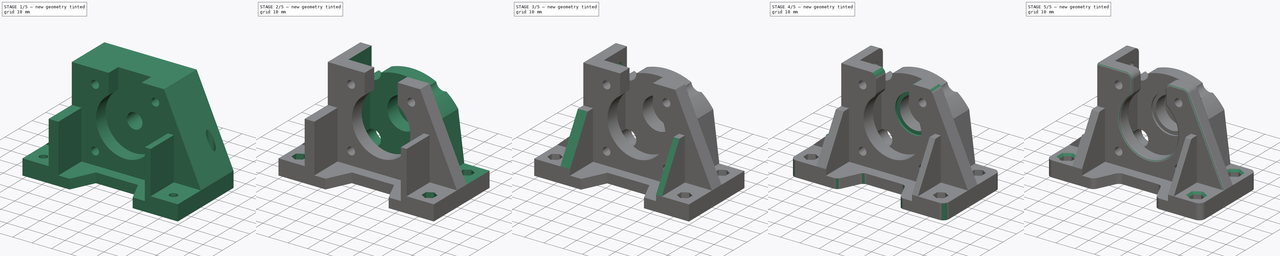
[diagram: build sequence overview — one tinted view per stage of 5, left to right]
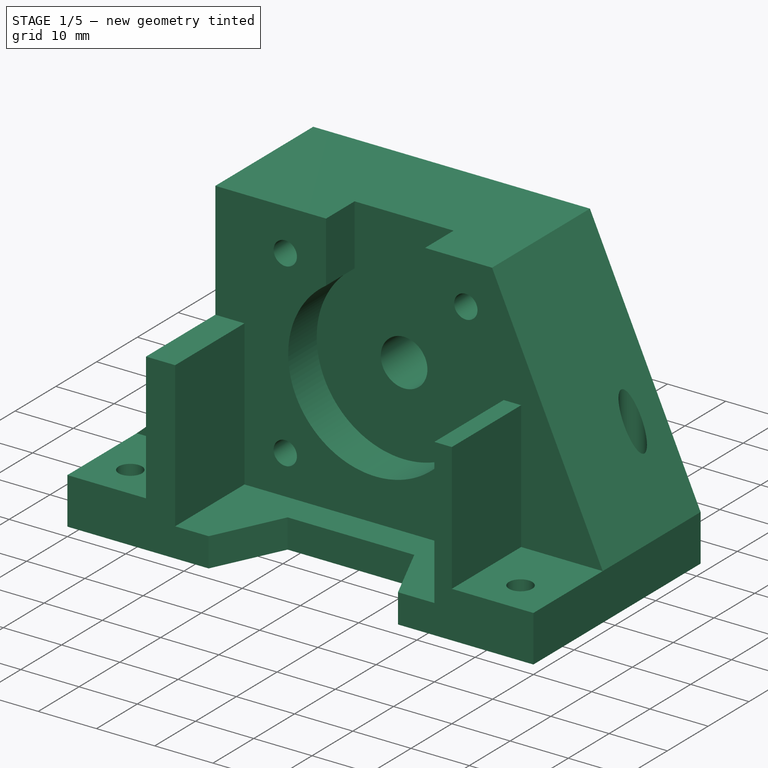
[diagram: stage 1 of 5 — iso view after this stage's code; geometry added in this stage tinted green]
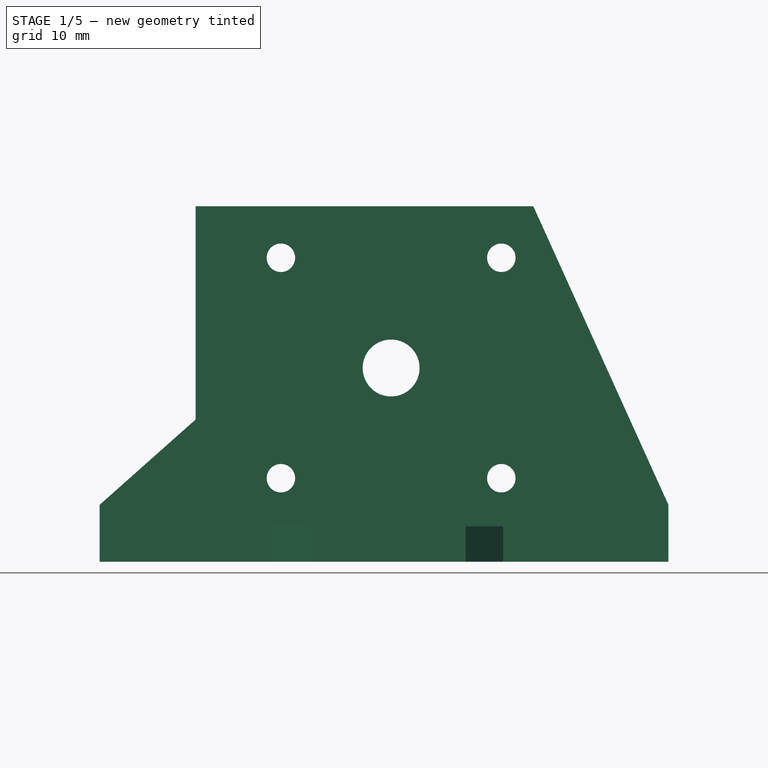
[diagram: stage 1 of 5 — front view after this stage's code; geometry added in this stage tinted green]
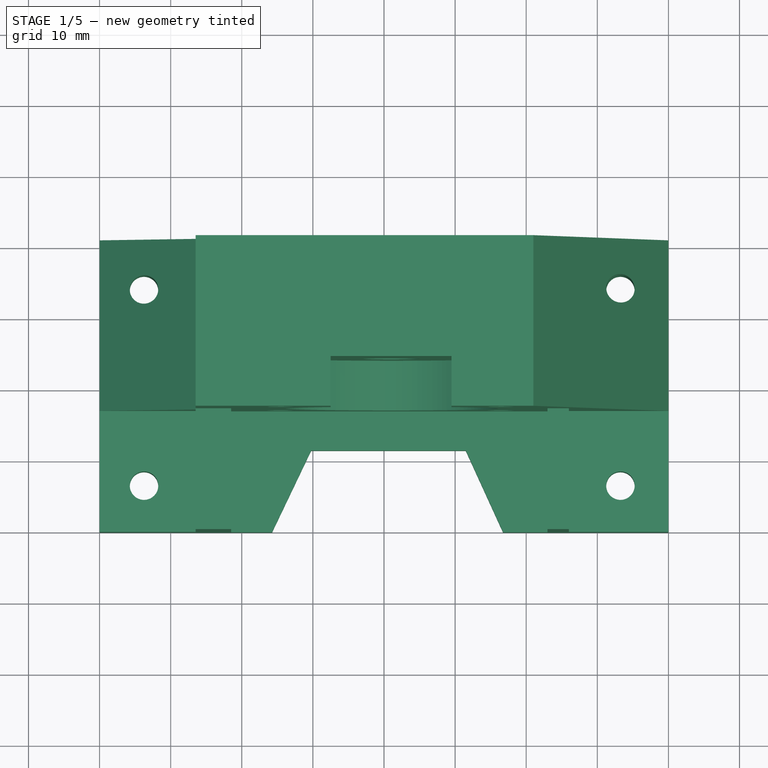
[diagram: stage 1 of 5 — top view after this stage's code; geometry added in this stage tinted green]
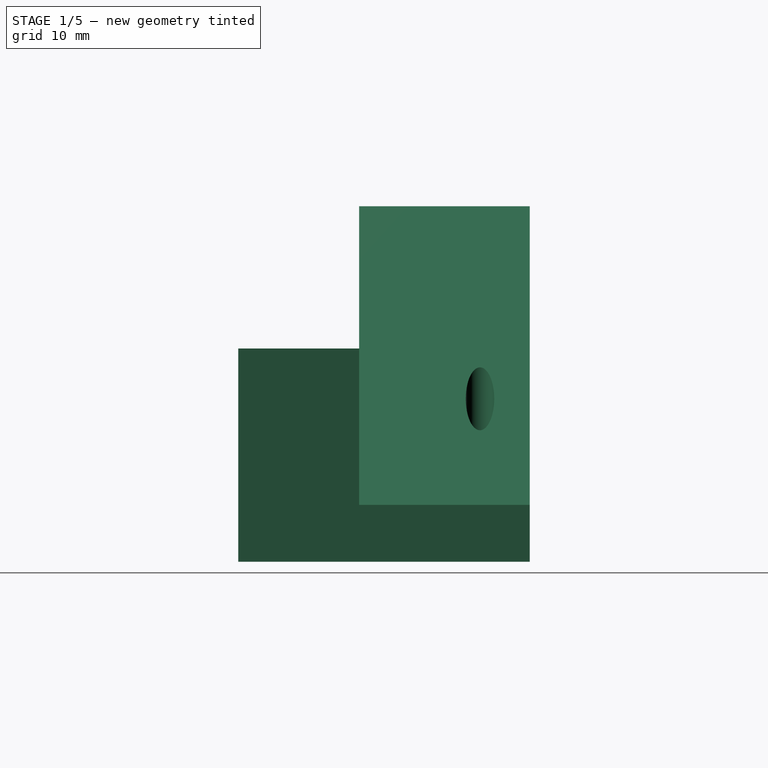
[diagram: stage 1 of 5 — right view after this stage's code; geometry added in this stage tinted green]
FCSTD DOCUMENT  (FreeCAD 0.18R4 (GitTag))
Label: Y_motor_mount_v0.2
License: CreativeCommons Attribution-ShareAlike
LicenseURL: http://creativecommons.org/licenses/by-sa/4.0/
objects: Sketcher::SketchObject×20, PartDesign::Pocket×18, PartDesign::Fillet×4, PartDesign::Pad×2, PartDesign::Chamfer×2, PartDesign::Body×1
note: 67 computed .brp shape members not serialized (recipe doc carries the construction recipe); baked Part::Feature solids carry a one-line shape summary decoded from their .brp

FEATURE [Sketcher::SketchObject] Sketch
  MapMode = 5
  Support = -> [XY_Plane]
  sketch-geometry (4):
    g0: LineSegment StartX=0 StartY=41 StartZ=0 EndX=80 EndY=41 EndZ=0
    g1: LineSegment StartX=80 StartY=41 StartZ=0 EndX=80 EndY=0 EndZ=0
    g2: LineSegment StartX=80 StartY=0 StartZ=0 EndX=0 EndY=0 EndZ=0
    g3: LineSegment StartX=0 StartY=0 StartZ=0 EndX=0 EndY=41 EndZ=0
  constraints (11):
    c: Coincident(g0,g1)
    c: Coincident(g1,g2)
    c: Coincident(g2,g3)
    c: Coincident(g3,g0)
    c: Horizontal(g0)
    c: Horizontal(g2)
    c: Vertical(g1)
    c: Vertical(g3)
    c: Coincident(g2,g-1)
    c: DistanceY(g3,g3) = 41
    c: DistanceX(g0,g0) = 80
FEATURE [PartDesign::Pad] Pad
  Length = 50
  Length2 = 100
  Profile = -> Sketch
  Type = 0
FEATURE [Sketcher::SketchObject] Sketch001
  MapMode = 5
  Placement = pos=(0,41,0) rot=(0,0.707107,0.707107;3.14159rad)
  Support = -> [Pad]
  sketch-geometry (17):
    g0: LineSegment StartX=-13.5 StartY=20 StartZ=0 EndX=-13.5 EndY=50 EndZ=0
    g1: LineSegment StartX=-13.5 StartY=50 StartZ=0 EndX=0 EndY=50 EndZ=0
    g2: LineSegment StartX=0 StartY=50 StartZ=0 EndX=0 EndY=8 EndZ=0
    g3: LineSegment StartX=0 StartY=8 StartZ=0 EndX=-13.5 EndY=20 EndZ=0
    g4: LineSegment StartX=-61 StartY=50 StartZ=0 EndX=-80 EndY=8 EndZ=0
    g5: LineSegment StartX=-80 StartY=8 StartZ=0 EndX=-80 EndY=50 EndZ=0
    g6: LineSegment StartX=-80 StartY=50 StartZ=0 EndX=-61 EndY=50 EndZ=0
    g7: Circle CenterX=-41 CenterY=27.25 CenterZ=0 NormalX=0 NormalY=0 NormalZ=1 AngleXU=0 Radius=4
    g8: LineSegment [constr] StartX=-56.5 StartY=42.75 StartZ=0 EndX=-56.5 EndY=11.75 EndZ=0
    g9: LineSegment [constr] StartX=-56.5 StartY=11.75 StartZ=0 EndX=-25.5 EndY=11.75 EndZ=0
    g10: LineSegment [constr] StartX=-25.5 StartY=11.75 StartZ=0 EndX=-25.5 EndY=42.75 EndZ=0
    g11: LineSegment [constr] StartX=-25.5 StartY=42.75 StartZ=0 EndX=-56.5 EndY=42.75 EndZ=0
    g12: Circle [constr] CenterX=-41 CenterY=27.25 CenterZ=0 NormalX=0 NormalY=0 NormalZ=1 AngleXU=0 Radius=21.9203
    g13: Circle CenterX=-56.5 CenterY=42.75 CenterZ=0 NormalX=0 NormalY=0 NormalZ=1 AngleXU=0 Radius=2
    g14: Circle CenterX=-56.5 CenterY=11.75 CenterZ=0 NormalX=0 NormalY=0 NormalZ=1 AngleXU=0 Radius=2
    g15: Circle CenterX=-25.5 CenterY=11.75 CenterZ=0 NormalX=0 NormalY=0 NormalZ=1 AngleXU=0 Radius=2
    g16: Circle CenterX=-25.5 CenterY=42.75 CenterZ=0 NormalX=0 NormalY=0 NormalZ=1 AngleXU=0 Radius=2
  constraints (46):
    c: Coincident(g0,g1)
    c: Coincident(g1,g2)
    c: Coincident(g2,g3)
    c: Coincident(g4,g5)
    c: Coincident(g5,g6)
    c: Coincident(g6,g4)
    c: PointOnObject(g2,g-2)
    c: DistanceY(g2) = 8
    c: Coincident(g0,g3)
    c: Vertical(g0)
    c: Vertical(g2)
    c: Horizontal(g1)
    c: DistanceY(g2,g2) = 42
    c: DistanceX(g1,g1) = 13.5
    c: DistanceY(g0,g0) = 30
    c: DistanceY(g4,g2) = 0
    c: DistanceX(g4) = -80
    c: Vertical(g5)
    c: Horizontal(g6)
    c: PointOnObject(g4,g1)
    c: DistanceX(g6,g6) = 19
    c: DistanceX(g7) = -41
    c: DistanceY(g7) = 27.25
    c: Radius(g7) = 4
    c: Coincident(g8,g9)
    c: Coincident(g9,g10)
    c: Coincident(g10,g11)
    c: Coincident(g11,g8)
    c: Equal(g8,g9)
    c: Equal(g8,g10)
    c: Equal(g8,g11)
    c: PointOnObject(g8,g12)
    c: PointOnObject(g9,g12)
    c: PointOnObject(g10,g12)
    c: PointOnObject(g11,g12)
    c: Coincident(g7,g12)
    c: Horizontal(g11)
    c: DistanceX(g11,g11) = 31
    c: Coincident(g10,g16)
    c: Coincident(g9,g15)
    c: Coincident(g8,g14)
    c: Coincident(g8,g13)
    c: Equal(g13,g16)
    c: Equal(g16,g15)
    c: Equal(g15,g14)
    c: Radius(g14) = 2
FEATURE [PartDesign::Pocket] Pocket
  BaseFeature = -> Pad
  Length = 5
  Length2 = 100
  Profile = -> Sketch001
  Type = 1
FEATURE [Sketcher::SketchObject] Sketch002
  MapMode = 5
  Placement = pos=(0,0,50) rot=(0,0,1;0rad)
  Support = -> [Pocket]
  sketch-geometry (12):
    g0: LineSegment StartX=24.25 StartY=0 StartZ=0 EndX=29.75 EndY=11.5 EndZ=0
    g1: LineSegment StartX=29.75 StartY=11.5 StartZ=0 EndX=51.5 EndY=11.5 EndZ=0
    g2: LineSegment StartX=51.5 StartY=11.5 StartZ=0 EndX=56.75 EndY=0 EndZ=0
    g3: LineSegment StartX=56.75 StartY=0 StartZ=0 EndX=24.25 EndY=0 EndZ=0
    g4: LineSegment [constr] StartX=6.25 StartY=6.5 StartZ=0 EndX=73.25 EndY=6.5 EndZ=0
    g5: LineSegment [constr] StartX=73.25 StartY=6.5 StartZ=0 EndX=73.25 EndY=34 EndZ=0
    g6: LineSegment [constr] StartX=73.25 StartY=34 StartZ=0 EndX=6.25 EndY=34 EndZ=0
    g7: LineSegment [constr] StartX=6.25 StartY=34 StartZ=0 EndX=6.25 EndY=6.5 EndZ=0
    g8: Circle CenterX=6.25 CenterY=34 CenterZ=0 NormalX=0 NormalY=0 NormalZ=1 AngleXU=0 Radius=2
    g9: Circle CenterX=73.25 CenterY=34 CenterZ=0 NormalX=0 NormalY=0 NormalZ=1 AngleXU=0 Radius=2
    g10: Circle CenterX=73.25 CenterY=6.5 CenterZ=0 NormalX=0 NormalY=0 NormalZ=1 AngleXU=0 Radius=2
    g11: Circle CenterX=6.25 CenterY=6.5 CenterZ=0 NormalX=0 NormalY=0 NormalZ=1 AngleXU=0 Radius=2
  constraints (32):
    c: Coincident(g0,g1)
    c: Coincident(g1,g2)
    c: Coincident(g2,g3)
    c: Coincident(g3,g0)
    c: PointOnObject(g0,g-1)
    c: Horizontal(g3)
    c: Horizontal(g1)
    c: DistanceX(g0) = 24.25
    c: DistanceX(g3,g3) = 32.5
    c: DistanceY(g2,g2) = 11.5
    c: DistanceX(g1,g1) = 21.75
    c: DistanceX(g0,g0) = 5.5
    c: Coincident(g4,g5)
    c: Coincident(g5,g6)
    c: Coincident(g6,g7)
    c: Coincident(g7,g4)
    c: Horizontal(g4)
    c: Horizontal(g6)
    c: Vertical(g5)
    c: Vertical(g7)
    c: DistanceX(g4) = 6.25
    c: DistanceY(g4) = 6.5
    c: DistanceY(g7,g7) = 27.5
    c: DistanceX(g6,g6) = 67
    c: Coincident(g4,g11)
    c: Coincident(g4,g10)
    c: Coincident(g5,g9)
    c: Coincident(g6,g8)
    c: Radius(g10) = 2
    c: Equal(g10,g9)
    c: Equal(g10,g8)
    c: Equal(g10,g11)
FEATURE [PartDesign::Pocket] Pocket001
  BaseFeature = -> Pocket
  Length = 5
  Length2 = 100
  Profile = -> Sketch002
  Type = 1
FEATURE [Sketcher::SketchObject] Sketch003
  MapMode = 5
  Placement = pos=(0,0,0) rot=(1,0,0;1.5708rad)
  Support = -> [Pocket001]
  sketch-geometry (13):
    g0: LineSegment StartX=0 StartY=8 StartZ=0 EndX=13.5 EndY=8 EndZ=0
    g1: LineSegment StartX=13.5 StartY=8 StartZ=0 EndX=13.5 EndY=30 EndZ=0
    g2: LineSegment StartX=13.5 StartY=38 StartZ=0 EndX=0 EndY=8 EndZ=0
    g3: LineSegment StartX=13.5 StartY=38 StartZ=0 EndX=13.5 EndY=50 EndZ=0
    g4: LineSegment StartX=13.5 StartY=50 StartZ=0 EndX=61 EndY=50 EndZ=0
    g5: LineSegment StartX=61 StartY=50 StartZ=0 EndX=80 EndY=8 EndZ=0
    g6: LineSegment StartX=80 StartY=8 StartZ=0 EndX=66 EndY=8 EndZ=0
    g7: LineSegment StartX=66 StartY=8 StartZ=0 EndX=66 EndY=30 EndZ=0
    g8: LineSegment StartX=66 StartY=30 StartZ=0 EndX=63 EndY=30 EndZ=0
    g9: LineSegment StartX=63 StartY=30 StartZ=0 EndX=63 EndY=5 EndZ=0
    g10: LineSegment StartX=63 StartY=5 StartZ=0 EndX=18.5 EndY=5 EndZ=0
    g11: LineSegment StartX=18.5 StartY=5 StartZ=0 EndX=18.5 EndY=30 EndZ=0
    g12: LineSegment StartX=18.5 StartY=30 StartZ=0 EndX=13.5 EndY=30 EndZ=0
  constraints (39):
    c: Coincident(g0,g1)
    c: Coincident(g2,g0)
    c: Horizontal(g0)
    c: PointOnObject(g0,g-2)
    c: DistanceY(g2,g2) = 30
    c: DistanceY(g0) = 8
    c: Coincident(g3,g4)
    c: Coincident(g4,g5)
    c: Coincident(g5,g6)
    c: Coincident(g6,g7)
    c: Coincident(g7,g8)
    c: Coincident(g8,g9)
    c: Coincident(g9,g10)
    c: Coincident(g10,g11)
    c: Coincident(g11,g12)
    c: Coincident(g1,g12)
    c: Vertical(g1)
    c: Vertical(g11)
    c: Vertical(g9)
    c: Vertical(g7)
    c: Horizontal(g6)
    c: Horizontal(g10)
    c: Horizontal(g4)
    c: Vertical(g3)
    c: DistanceY(g3) = 50
    c: Coincident(g2,g3)
    c: DistanceX(g2,g2) = 13.5
    c: DistanceX(g4,g4) = 47.5
    c: Horizontal(g12)
    c: Horizontal(g8)
    c: DistanceX(g0,g0) = 13.5
    c: DistanceY(g1,g1) = 22
    c: DistanceX(g12,g12) = 5
    c: DistanceY(g11,g11) = 25
    c: DistanceX(g10,g10) = 44.5
    c: Equal(g9,g11)
    c: Equal(g7,g1)
    c: DistanceX(g6,g6) = 14
    c: DistanceX(g8,g8) = 3
FEATURE [PartDesign::Pocket] Pocket002
  BaseFeature = -> Pocket001
  Length = 17
  Length2 = 100
  Profile = -> Sketch003
  Type = 0
FEATURE [Sketcher::SketchObject] Sketch004
  MapMode = 5
  Placement = pos=(0,17,-3.7e-15) rot=(1,0,0;1.5708rad)
  Support = -> [Pocket002]
  sketch-geometry (5):
    g0: ArcOfCircle CenterX=41 CenterY=27.25 CenterZ=0 NormalX=0 NormalY=0 NormalZ=1 AngleXU=0 Radius=15 StartAngle=2.17325 EndAngle=7.25153
    g1: LineSegment [constr] StartX=32.5 StartY=39.6092 StartZ=0 EndX=49.5 EndY=39.6092 EndZ=0
    g2: LineSegment StartX=49.5 StartY=39.6092 StartZ=0 EndX=49.5 EndY=50.1092 EndZ=0
    g3: LineSegment StartX=49.5 StartY=50.1092 StartZ=0 EndX=32.5 EndY=50.1092 EndZ=0
    g4: LineSegment StartX=32.5 StartY=50.1092 StartZ=0 EndX=32.5 EndY=39.6092 EndZ=0
  constraints (15):
    c: Coincident(g1,g2)
    c: Coincident(g2,g3)
    c: Coincident(g3,g4)
    c: Coincident(g4,g1)
    c: Horizontal(g1)
    c: Horizontal(g3)
    c: Vertical(g2)
    c: Vertical(g4)
    c: Coincident(g0,g1)
    c: Coincident(g0,g1)
    c: DistanceX(g0) = 41
    c: DistanceY(g0) = 27.25
    c: Radius(g0) = 15
    c: DistanceX(g1,g1) = 17
    c: DistanceY(g2,g2) = 10.5
FEATURE [PartDesign::Pocket] Pocket003
  BaseFeature = -> Pocket002
  Length = 7
  Length2 = 100
  Profile = -> Sketch004
  Type = 0
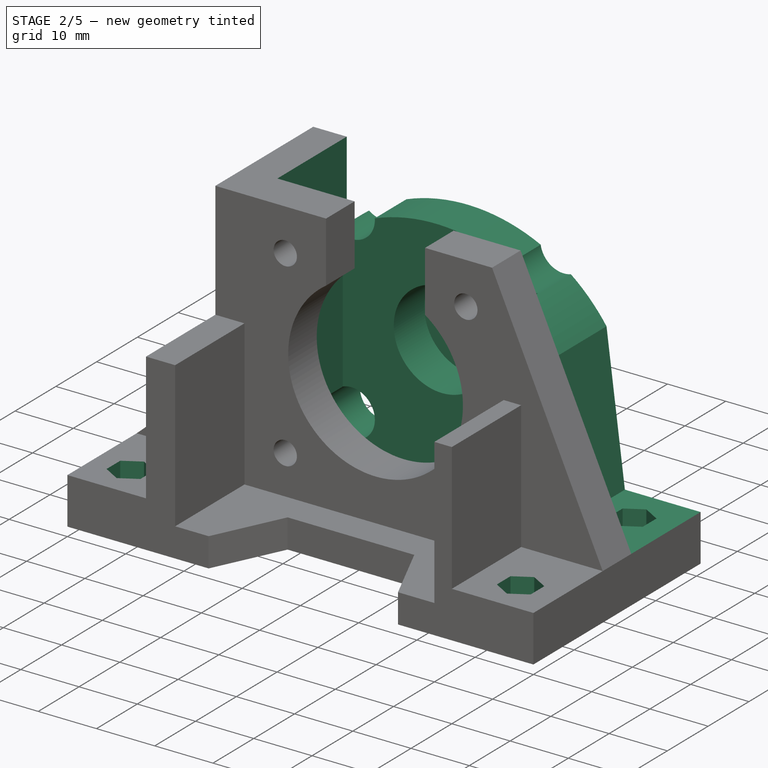
[diagram: stage 2 of 5 — iso view after this stage's code; geometry added in this stage tinted green]
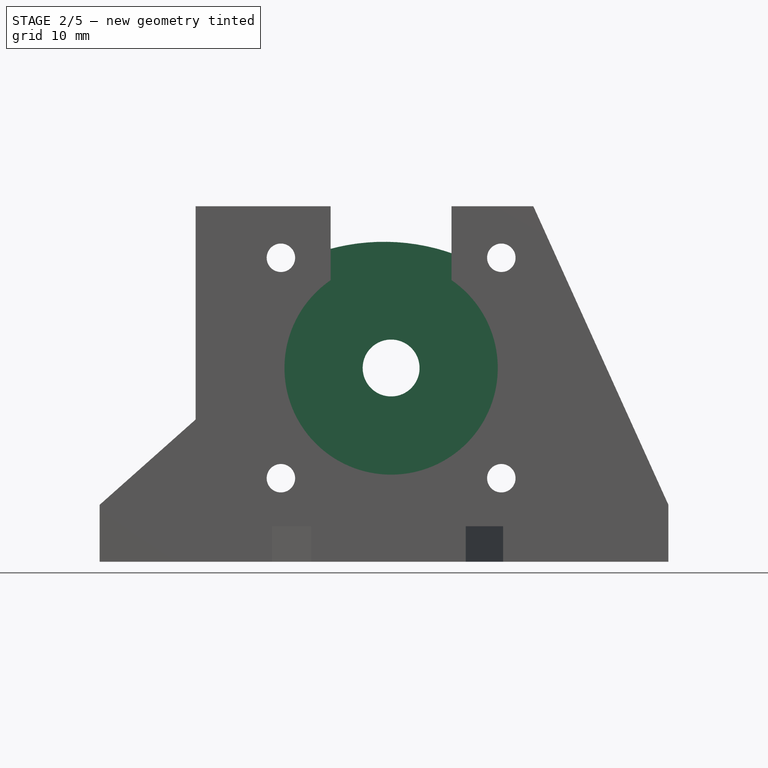
[diagram: stage 2 of 5 — front view after this stage's code; geometry added in this stage tinted green]
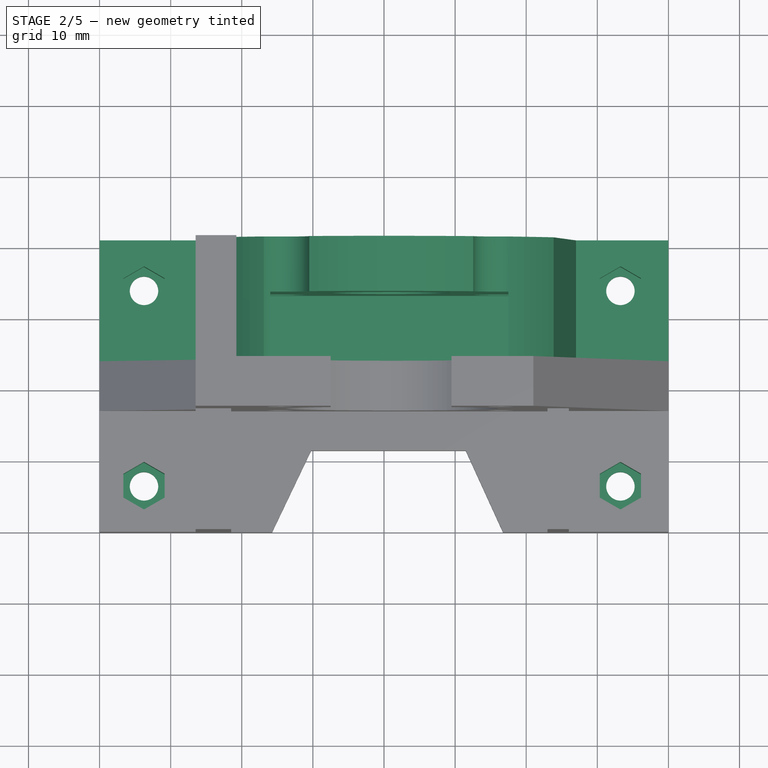
[diagram: stage 2 of 5 — top view after this stage's code; geometry added in this stage tinted green]
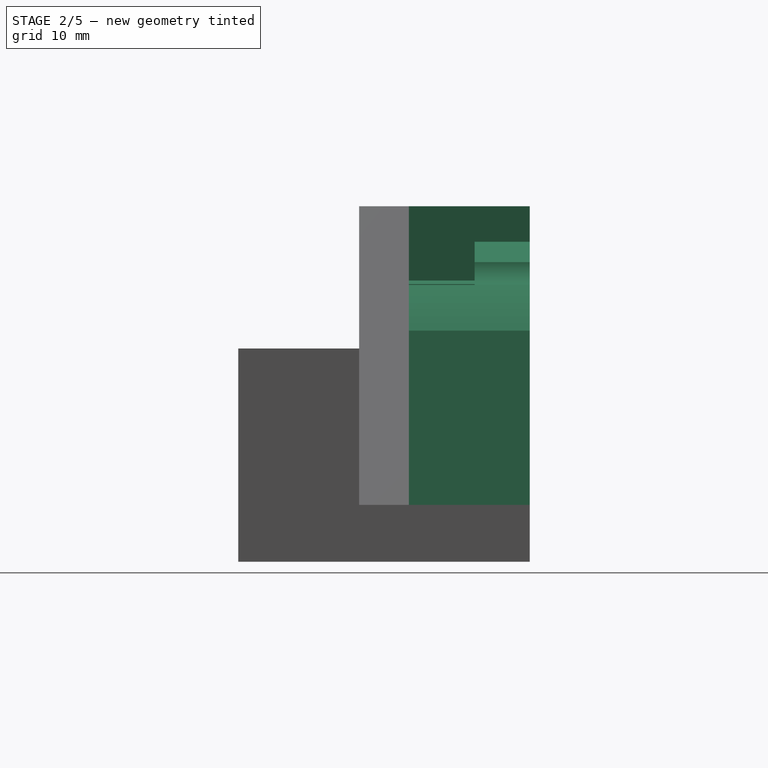
[diagram: stage 2 of 5 — right view after this stage's code; geometry added in this stage tinted green]
FEATURE [Sketcher::SketchObject] Sketch005
  MapMode = 5
  Placement = pos=(0,24,-4.8e-15) rot=(1,0,0;1.5708rad)
  Support = -> [Pocket003]
  sketch-geometry (4):
    g0: LineSegment StartX=24 StartY=50 StartZ=0 EndX=57.5 EndY=50 EndZ=0
    g1: LineSegment StartX=57.5 StartY=50 StartZ=0 EndX=57.5 EndY=5 EndZ=0
    g2: LineSegment StartX=57.5 StartY=5 StartZ=0 EndX=24 EndY=5 EndZ=0
    g3: LineSegment StartX=24 StartY=5 StartZ=0 EndX=24 EndY=50 EndZ=0
  constraints (12):
    c: Coincident(g0,g1)
    c: Coincident(g1,g2)
    c: Coincident(g2,g3)
    c: Coincident(g3,g0)
    c: Horizontal(g0)
    c: Horizontal(g2)
    c: Vertical(g1)
    c: Vertical(g3)
    c: DistanceX(g1) = 57.5
    c: DistanceY(g1) = 5
    c: DistanceY(g1,g1) = 45
    c: DistanceX(g0,g0) = 33.5
FEATURE [PartDesign::Pocket] Pocket004
  BaseFeature = -> Pocket003
  Length = 9.25
  Length2 = 100
  Profile = -> Sketch005
  Type = 0
FEATURE [Sketcher::SketchObject] Sketch006
  MapMode = 5
  Placement = pos=(0,41,0) rot=(0,0.707107,0.707107;3.14159rad)
  Support = -> [Pocket004]
  sketch-geometry (9):
    g0: LineSegment StartX=-13.5 StartY=8 StartZ=0 EndX=0 EndY=8 EndZ=0
    g1: LineSegment StartX=0 StartY=8 StartZ=0 EndX=-13.5 EndY=38 EndZ=0
    g2: LineSegment StartX=-13.5 StartY=38 StartZ=0 EndX=-13.5 EndY=8 EndZ=0
    g3: LineSegment StartX=-67 StartY=8 StartZ=0 EndX=-63.8485 EndY=32.5 EndZ=0
    g4: LineSegment StartX=-80.241 StartY=8 StartZ=0 EndX=-67 EndY=8 EndZ=0
    g5: LineSegment StartX=-80.241 StartY=8 StartZ=0 EndX=-61.241 EndY=50 EndZ=0
    g6: LineSegment StartX=-61.241 StartY=50 StartZ=0 EndX=-19.241 EndY=50 EndZ=0
    g7: LineSegment StartX=-19.241 StartY=50 StartZ=0 EndX=-19.241 EndY=36.25 EndZ=0
    g8: ArcOfCircle CenterX=-40 CenterY=16 CenterZ=0 NormalX=0 NormalY=0 NormalZ=1 AngleXU=0 Radius=29 StartAngle=0.772986 EndAngle=2.53635
  constraints (28):
    c: Coincident(g0,g1)
    c: Coincident(g1,g2)
    c: Coincident(g5,g6)
    c: Coincident(g6,g7)
    c: Coincident(g4,g5)
    c: Coincident(g3,g4)
    c: Horizontal(g4)
    c: Horizontal(g0)
    c: Horizontal(g6)
    c: Vertical(g7)
    c: Vertical(g2)
    c: Coincident(g0,g2)
    c: PointOnObject(g0,g-2)
    c: DistanceY(g0) = 8
    c: DistanceX(g0,g0) = 13.5
    c: DistanceY(g2,g2) = 30
    c: DistanceX(g8) = -40
    c: DistanceY(g8) = 16
    c: Coincident(g7,g8)
    c: Coincident(g3,g8)
    c: PointOnObject(g3,g0)
    c: DistanceX(g3,g0) = 53.5
    c: DistanceY(g3,g3) = 24.5
    c: Radius(g8) = 29
    c: DistanceY(g5,g5) = 42
    c: DistanceX(g5,g5) = 19
    c: DistanceX(g6,g6) = 42
    c: DistanceY(g7,g7) = 13.75
FEATURE [PartDesign::Pocket] Pocket005
  BaseFeature = -> Pocket004
  Length = 17
  Length2 = 100
  Profile = -> Sketch006
  Type = 0
FEATURE [Sketcher::SketchObject] Sketch007
  MapMode = 5
  Placement = pos=(0,33.25,-8e-15) rot=(1,0,0;1.5708rad)
  Support = -> [Pocket005]
  sketch-geometry (1):
    g0: Circle CenterX=41 CenterY=27.25 CenterZ=0 NormalX=0 NormalY=0 NormalZ=1 AngleXU=0 Radius=8.25
  constraints (3):
    c: DistanceX(g0) = 41
    c: DistanceY(g0) = 27.25
    c: Radius(g0) = 8.25
FEATURE [Sketcher::SketchObject] Sketch008
  MapMode = 5
  Placement = pos=(0,41,0) rot=(0,0.707107,0.707107;3.14159rad)
  sketch-geometry (9):
    g0: LineSegment [constr] StartX=-56.5 StartY=42.75 StartZ=0 EndX=-56.5 EndY=11.75 EndZ=0
    g1: LineSegment [constr] StartX=-56.5 StartY=11.75 StartZ=0 EndX=-25.5 EndY=11.75 EndZ=0
    g2: LineSegment [constr] StartX=-25.5 StartY=11.75 StartZ=0 EndX=-25.5 EndY=42.75 EndZ=0
    g3: LineSegment [constr] StartX=-25.5 StartY=42.75 StartZ=0 EndX=-56.5 EndY=42.75 EndZ=0
    g4: Circle [constr] CenterX=-41 CenterY=27.25 CenterZ=0 NormalX=0 NormalY=0 NormalZ=1 AngleXU=0 Radius=21.9203
    g5: Circle CenterX=-56.5 CenterY=42.75 CenterZ=0 NormalX=0 NormalY=0 NormalZ=1 AngleXU=0 Radius=4
    g6: Circle CenterX=-25.5 CenterY=42.75 CenterZ=0 NormalX=0 NormalY=0 NormalZ=1 AngleXU=0 Radius=4
    g7: Circle CenterX=-25.5 CenterY=11.75 CenterZ=0 NormalX=0 NormalY=0 NormalZ=1 AngleXU=0 Radius=4
    g8: Circle CenterX=-56.5 CenterY=11.75 CenterZ=0 NormalX=0 NormalY=0 NormalZ=1 AngleXU=0 Radius=4
  constraints (23):
    c: Coincident(g0,g1)
    c: Coincident(g1,g2)
    c: Coincident(g2,g3)
    c: Coincident(g3,g0)
    c: Equal(g0,g1)
    c: Equal(g0,g2)
    c: Equal(g0,g3)
    c: PointOnObject(g0,g4)
    c: PointOnObject(g1,g4)
    c: PointOnObject(g2,g4)
    c: PointOnObject(g3,g4)
    c: DistanceX(g4) = -41
    c: DistanceY(g4) = 27.25
    c: DistanceY(g2,g2) = 31
    c: Coincident(g0,g8)
    c: Coincident(g0,g5)
    c: Coincident(g2,g6)
    c: Coincident(g1,g7)
    c: Radius(g7) = 4
    c: Equal(g7,g5)
    c: Equal(g7,g6)
    c: Equal(g7,g8)
    c: Horizontal(g3)
FEATURE [Sketcher::SketchObject] Sketch009
  MapMode = 5
  Placement = pos=(0,2e-15,8) rot=(0,0,1;0rad)
  sketch-geometry (32):
    g0: LineSegment StartX=6.25 StartY=37.35 StartZ=0 EndX=3.34881 EndY=35.675 EndZ=0
    g1: LineSegment StartX=3.34881 StartY=35.675 StartZ=0 EndX=3.34881 EndY=32.325 EndZ=0
    g2: LineSegment StartX=3.34881 StartY=32.325 StartZ=0 EndX=6.25 EndY=30.65 EndZ=0
    g3: LineSegment StartX=6.25 StartY=30.65 StartZ=0 EndX=9.15119 EndY=32.325 EndZ=0
    g4: LineSegment StartX=9.15119 StartY=32.325 StartZ=0 EndX=9.15119 EndY=35.675 EndZ=0
    g5: LineSegment StartX=9.15119 StartY=35.675 StartZ=0 EndX=6.25 EndY=37.35 EndZ=0
    g6: Circle [constr] CenterX=6.25 CenterY=34 CenterZ=0 NormalX=0 NormalY=0 NormalZ=1 AngleXU=0 Radius=3.35
    g7: LineSegment StartX=73.25 StartY=37.35 StartZ=0 EndX=70.3488 EndY=35.675 EndZ=0
    g8: LineSegment StartX=70.3488 StartY=35.675 StartZ=0 EndX=70.3488 EndY=32.325 EndZ=0
    g9: LineSegment StartX=70.3488 StartY=32.325 StartZ=0 EndX=73.25 EndY=30.65 EndZ=0
    g10: LineSegment StartX=73.25 StartY=30.65 StartZ=0 EndX=76.1512 EndY=32.325 EndZ=0
    g11: LineSegment StartX=76.1512 StartY=32.325 StartZ=0 EndX=76.1512 EndY=35.675 EndZ=0
    g12: LineSegment StartX=76.1512 StartY=35.675 StartZ=0 EndX=73.25 EndY=37.35 EndZ=0
    g13: Circle [constr] CenterX=73.25 CenterY=34 CenterZ=0 NormalX=0 NormalY=0 NormalZ=1 AngleXU=0 Radius=3.35
    g14: LineSegment StartX=73.25 StartY=9.85 StartZ=0 EndX=70.3488 EndY=8.175 EndZ=0
    g15: LineSegment StartX=70.3488 StartY=8.175 StartZ=0 EndX=70.3488 EndY=4.825 EndZ=0
    g16: LineSegment StartX=70.3488 StartY=4.825 StartZ=0 EndX=73.25 EndY=3.15 EndZ=0
    g17: LineSegment StartX=73.25 StartY=3.15 StartZ=0 EndX=76.1512 EndY=4.825 EndZ=0
    g18: LineSegment StartX=76.1512 StartY=4.825 StartZ=0 EndX=76.1512 EndY=8.175 EndZ=0
    g19: LineSegment StartX=76.1512 StartY=8.175 StartZ=0 EndX=73.25 EndY=9.85 EndZ=0
    g20: Circle [constr] CenterX=73.25 CenterY=6.5 CenterZ=0 NormalX=0 NormalY=0 NormalZ=1 AngleXU=0 Radius=3.35
    g21: LineSegment StartX=6.25 StartY=9.85 StartZ=0 EndX=3.34881 EndY=8.175 EndZ=0
    g22: LineSegment StartX=3.34881 StartY=8.175 StartZ=0 EndX=3.34881 EndY=4.825 EndZ=0
    g23: LineSegment StartX=3.34881 StartY=4.825 StartZ=0 EndX=6.25 EndY=3.15 EndZ=0
    g24: LineSegment StartX=6.25 StartY=3.15 StartZ=0 EndX=9.15119 EndY=4.825 EndZ=0
    g25: LineSegment StartX=9.15119 StartY=4.825 StartZ=0 EndX=9.15119 EndY=8.175 EndZ=0
    g26: LineSegment StartX=9.15119 StartY=8.175 StartZ=0 EndX=6.25 EndY=9.85 EndZ=0
    g27: Circle [constr] CenterX=6.25 CenterY=6.5 CenterZ=0 NormalX=0 NormalY=0 NormalZ=1 AngleXU=0 Radius=3.35
    g28: LineSegment [constr] StartX=6.25 StartY=34 StartZ=0 EndX=73.25 EndY=34 EndZ=0
    g29: LineSegment [constr] StartX=73.25 StartY=34 StartZ=0 EndX=73.25 EndY=6.5 EndZ=0
    g30: LineSegment [constr] StartX=73.25 StartY=6.5 StartZ=0 EndX=6.25 EndY=6.5 EndZ=0
    g31: LineSegment [constr] StartX=6.25 StartY=6.5 StartZ=0 EndX=6.25 EndY=34 EndZ=0
  constraints (76):
    c: Coincident(g0,g1)
    c: Coincident(g1,g2)
    c: Coincident(g2,g3)
    c: Coincident(g3,g4)
    c: Coincident(g4,g5)
    c: Coincident(g5,g0)
    c: Equal(g0, g1-g5) x5
    c: PointOnObject(g0,g6)
    c: PointOnObject(g1,g6)
    c: PointOnObject(g2,g6)
    c: PointOnObject(g3,g6)
    c: PointOnObject(g4,g6)
    c: PointOnObject(g5,g6)
    c: Coincident(g7,g8)
    c: Coincident(g8,g9)
    c: Coincident(g9,g10)
    c: Coincident(g10,g11)
    c: Coincident(g11,g12)
    c: Coincident(g12,g7)
    c: Equal(g7, g8-g12) x5
    c: PointOnObject(g7,g13)
    c: PointOnObject(g8,g13)
    c: PointOnObject(g9,g13)
    c: PointOnObject(g10,g13)
    c: PointOnObject(g11,g13)
    c: PointOnObject(g12,g13)
    c: Coincident(g14,g15)
    c: Coincident(g15,g16)
    c: Coincident(g16,g17)
    c: Coincident(g17,g18)
    c: Coincident(g18,g19)
    c: Coincident(g19,g14)
    c: Equal(g14, g15-g19) x5
    c: PointOnObject(g14,g20)
    c: PointOnObject(g15,g20)
    c: PointOnObject(g16,g20)
    c: PointOnObject(g17,g20)
    c: PointOnObject(g18,g20)
    c: PointOnObject(g19,g20)
    c: Coincident(g21,g22)
    c: Coincident(g22,g23)
    c: Coincident(g23,g24)
    c: Coincident(g24,g25)
    c: Coincident(g25,g26)
    c: Coincident(g26,g21)
    c: Equal(g21, g22-g26) x5
    c: PointOnObject(g21,g27)
    c: PointOnObject(g22,g27)
    c: PointOnObject(g23,g27)
    c: PointOnObject(g24,g27)
    c: PointOnObject(g25,g27)
    c: PointOnObject(g26,g27)
    c: Coincident(g28,g29)
    c: Coincident(g29,g30)
    c: Coincident(g30,g31)
    c: Coincident(g31,g28)
    c: Horizontal(g28)
    c: Horizontal(g30)
    c: Vertical(g29)
    c: Vertical(g31)
    c: Coincident(g20,g29)
    c: Coincident(g13,g28)
    c: Coincident(g6,g28)
    c: Coincident(g27,g30)
    c: Vertical(g22)
    c: Vertical(g1)
    c: Vertical(g8)
    c: Vertical(g15)
    c: DistanceX(g13) = 73.25
    c: DistanceY(g13) = 34
    c: DistanceY(g29,g29) = 27.5
    c: DistanceX(g30,g30) = 67
    c: Radius(g27) = 3.35
    c: Equal(g27,g6)
    c: Equal(g27,g13)
    c: Equal(g27,g20)
FEATURE [Sketcher::SketchObject] Sketch010
  MapMode = 5
  Placement = pos=(13.5,0,0) rot=(0.57735,-0.57735,-0.57735;2.0944rad)
  sketch-geometry (3):
    g0: LineSegment StartX=-13 StartY=30 StartZ=0 EndX=-1.8e-15 EndY=8 EndZ=0
    g1: LineSegment StartX=0 StartY=8 StartZ=0 EndX=0 EndY=30 EndZ=0
    g2: LineSegment StartX=0 StartY=30 StartZ=0 EndX=-13 EndY=30 EndZ=0
  constraints (9):
    c: Coincident(g0,g1)
    c: Coincident(g1,g2)
    c: Coincident(g2,g0)
    c: Vertical(g1)
    c: Horizontal(g2)
    c: DistanceX(g0) = 0
    c: DistanceY(g0) = 8
    c: DistanceY(g1,g1) = 22
    c: DistanceX(g2,g2) = 13
FEATURE [PartDesign::Pocket] Pocket006
  BaseFeature = -> Pocket005
  Length = 7.5
  Length2 = 100
  Profile = -> Sketch007
  Type = 0
FEATURE [PartDesign::Pocket] Pocket007
  BaseFeature = -> Pocket006
  Length = 18
  Length2 = 100
  Profile = -> Sketch008
  Type = 0
FEATURE [PartDesign::Pocket] Pocket008
  BaseFeature = -> Pocket007
  Length = 6
  Length2 = 100
  Profile = -> Sketch009
  Type = 0
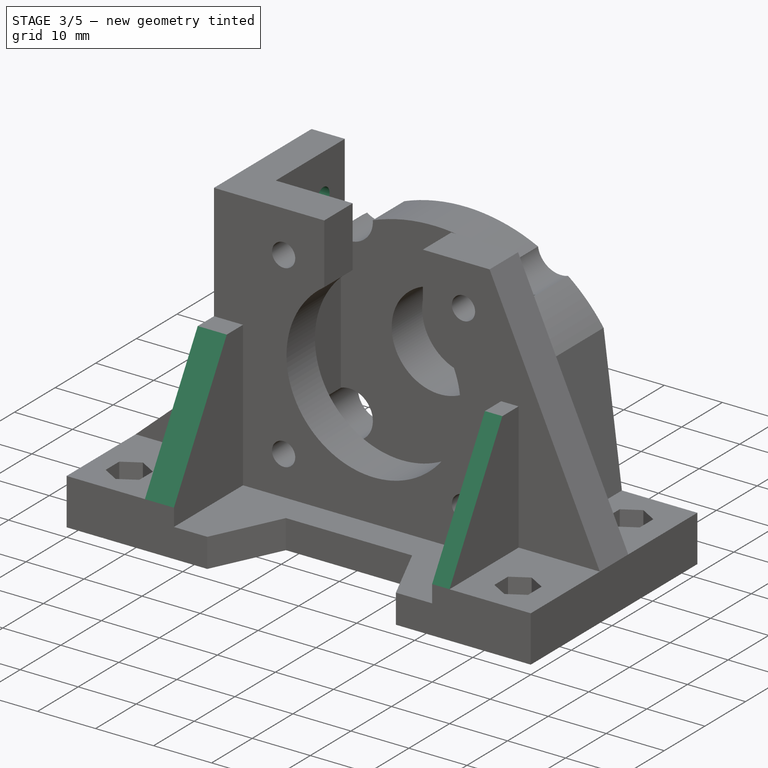
[diagram: stage 3 of 5 — iso view after this stage's code; geometry added in this stage tinted green]
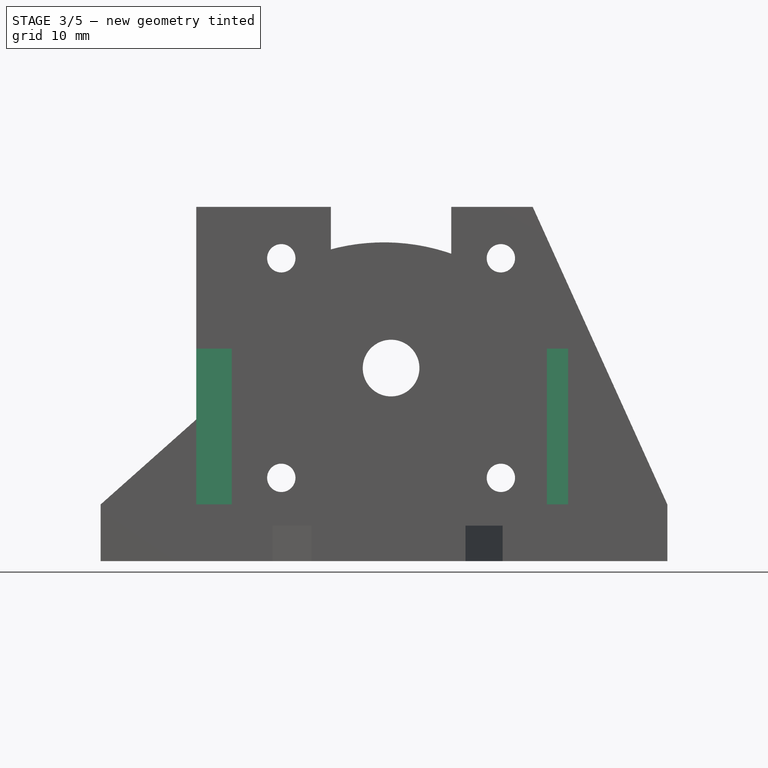
[diagram: stage 3 of 5 — front view after this stage's code; geometry added in this stage tinted green]
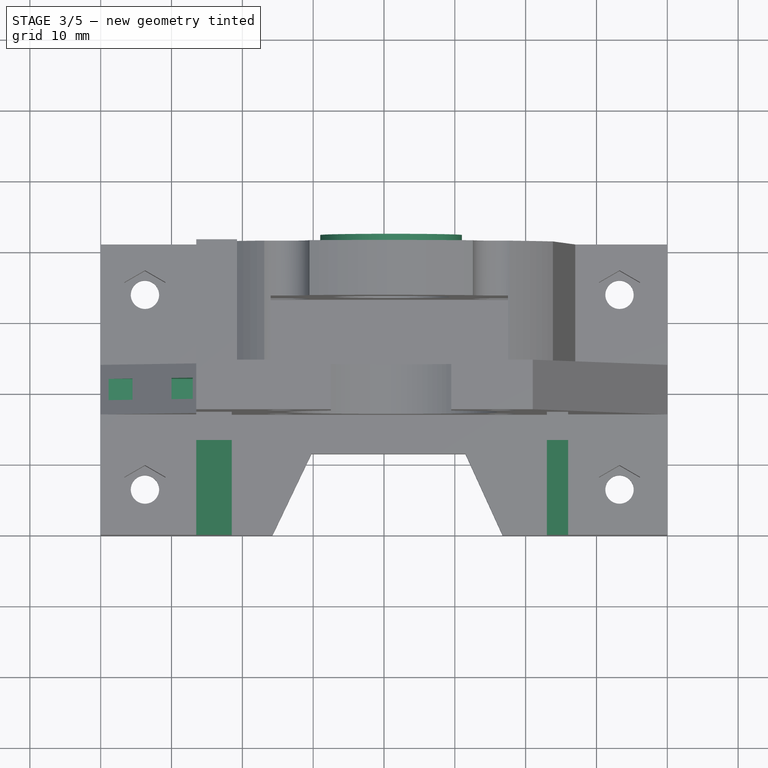
[diagram: stage 3 of 5 — top view after this stage's code; geometry added in this stage tinted green]
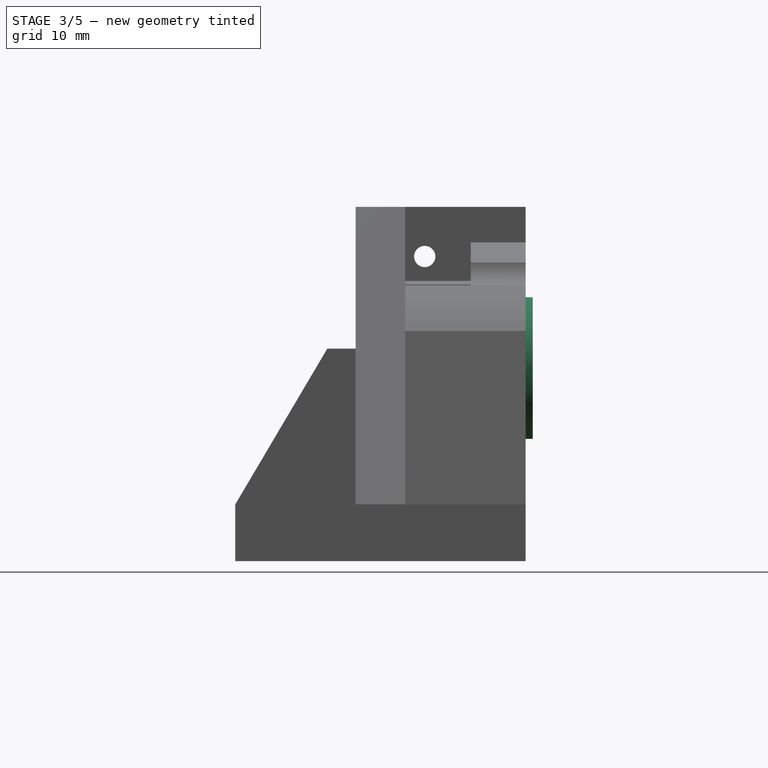
[diagram: stage 3 of 5 — right view after this stage's code; geometry added in this stage tinted green]
FEATURE [PartDesign::Pocket] Pocket009
  BaseFeature = -> Pocket008
  Length = 5
  Length2 = 100
  Profile = -> Sketch010
  Type = 1
FEATURE [Sketcher::SketchObject] Sketch011
  MapMode = 5
  Placement = pos=(13.5,0,0) rot=(0.57735,-0.57735,-0.57735;2.0944rad)
  Support = -> [Pocket009]
  sketch-geometry (2):
    g0: Circle CenterX=-35.75 CenterY=43 CenterZ=0 NormalX=0 NormalY=0 NormalZ=1 AngleXU=0 Radius=1.5
    g1: Circle CenterX=-26.75 CenterY=43 CenterZ=0 NormalX=0 NormalY=0 NormalZ=1 AngleXU=0 Radius=1.5
  constraints (6):
    c: DistanceX(g1) = -26.75
    c: DistanceY(g1) = 43
    c: DistanceX(g0,g1) = 9
    c: DistanceY(g0,g1) = 0
    c: Radius(g0) = 1.5
    c: Equal(g0,g1)
FEATURE [PartDesign::Pocket] Pocket010
  BaseFeature = -> Pocket009
  Length = 7
  Length2 = 100
  Profile = -> Sketch011
  Type = 0
FEATURE [Sketcher::SketchObject] Sketch012
  MapMode = 5
  Placement = pos=(0,41,0) rot=(0,0.707107,0.707107;3.14159rad)
  Support = -> [Pocket010]
  sketch-geometry (2):
    g0: Circle CenterX=-41 CenterY=27.25 CenterZ=0 NormalX=0 NormalY=0 NormalZ=1 AngleXU=0 Radius=4
    g1: Circle CenterX=-41 CenterY=27.25 CenterZ=0 NormalX=0 NormalY=0 NormalZ=1 AngleXU=0 Radius=10
  constraints (5):
    c: Coincident(g0,g1)
    c: DistanceX(g0) = -41
    c: DistanceY(g0) = 27.25
    c: Radius(g0) = 4
    c: Radius(g1) = 10
FEATURE [PartDesign::Pad] Pad001
  BaseFeature = -> Pocket010
  Length = 1
  Length2 = 100
  Profile = -> Sketch012
  Type = 0
FEATURE [Sketcher::SketchObject] Sketch013
  MapMode = 5
  Placement = pos=(0,0,0) rot=(0.57735,-0.57735,-0.57735;2.0944rad)
  Support = -> [Pad001]
  sketch-geometry (4):
    g0: LineSegment StartX=-22 StartY=12 StartZ=0 EndX=-19 EndY=12 EndZ=0
    g1: LineSegment StartX=-19 StartY=12 StartZ=0 EndX=-19 EndY=9 EndZ=0
    g2: LineSegment StartX=-19 StartY=9 StartZ=0 EndX=-22 EndY=9 EndZ=0
    g3: LineSegment StartX=-22 StartY=9 StartZ=0 EndX=-22 EndY=12 EndZ=0
  constraints (12):
    c: Coincident(g0,g1)
    c: Coincident(g1,g2)
    c: Coincident(g2,g3)
    c: Coincident(g3,g0)
    c: Horizontal(g0)
    c: Horizontal(g2)
    c: Vertical(g1)
    c: Vertical(g3)
    c: Equal(g2,g1)
    c: DistanceY(g1,g1) = 3
    c: DistanceX(g1) = -19
    c: DistanceY(g1) = 9
FEATURE [PartDesign::Pocket] Pocket011
  BaseFeature = -> Pad001
  Length = 13
  Length2 = 100
  Profile = -> Sketch013
  Type = 0
FEATURE [Sketcher::SketchObject] Sketch014
  MapMode = 5
  Placement = pos=(0,0,9) rot=(0,0,1;0rad)
  Support = -> [Pocket011]
  sketch-geometry (4):
    g0: LineSegment StartX=13 StartY=22 StartZ=0 EndX=10 EndY=22 EndZ=0
    g1: LineSegment StartX=10 StartY=22 StartZ=0 EndX=10 EndY=19 EndZ=0
    g2: LineSegment StartX=10 StartY=19 StartZ=0 EndX=13 EndY=19 EndZ=0
    g3: LineSegment StartX=13 StartY=19 StartZ=0 EndX=13 EndY=22 EndZ=0
  constraints (12):
    c: Coincident(g0,g1)
    c: Coincident(g1,g2)
    c: Coincident(g2,g3)
    c: Coincident(g3,g0)
    c: Horizontal(g0)
    c: Horizontal(g2)
    c: Vertical(g1)
    c: Vertical(g3)
    c: DistanceX(g2) = 13
    c: DistanceY(g2) = 19
    c: Equal(g1,g2)
    c: DistanceY(g1,g1) = 3
FEATURE [PartDesign::Pocket] Pocket012
  BaseFeature = -> Pocket011
  Length = 5
  Length2 = 100
  Profile = -> Sketch014
  Reversed = true
  Type = 1
FEATURE [Sketcher::SketchObject] Sketch015
  MapMode = 5
  Placement = pos=(0,0,0) rot=(1,0,0;3.14159rad)
  sketch-geometry (8):
    g0: LineSegment StartX=6.2 StartY=-32.0006 StartZ=0 EndX=6.3 EndY=-32.0006 EndZ=0
    g1: LineSegment StartX=6.3 StartY=-32.0006 StartZ=0 EndX=6.3 EndY=0 EndZ=0
    g2: LineSegment StartX=6.3 StartY=0 StartZ=0 EndX=6.2 EndY=0 EndZ=0
    g3: LineSegment StartX=6.2 StartY=0 StartZ=0 EndX=6.2 EndY=-32.0006 EndZ=0
    g4: LineSegment StartX=73.2 StartY=-32.0006 StartZ=0 EndX=73.3 EndY=-32.0006 EndZ=0
    g5: LineSegment StartX=73.3 StartY=-32.0006 StartZ=0 EndX=73.3 EndY=0 EndZ=0
    g6: LineSegment StartX=73.3 StartY=0 StartZ=0 EndX=73.2 EndY=0 EndZ=0
    g7: LineSegment StartX=73.2 StartY=0 StartZ=0 EndX=73.2 EndY=-32.0006 EndZ=0
  constraints (24):
    c: Coincident(g0,g1)
    c: Coincident(g1,g2)
    c: Coincident(g2,g3)
    c: Coincident(g3,g0)
    c: Horizontal(g0)
    c: Horizontal(g2)
    c: Vertical(g1)
    c: Vertical(g3)
    c: Coincident(g4,g5)
    c: Coincident(g5,g6)
    c: Coincident(g6,g7)
    c: Coincident(g7,g4)
    c: Horizontal(g4)
    c: Horizontal(g6)
    c: Vertical(g5)
    c: Vertical(g7)
    c: PointOnObject(g2,g-1)
    c: PointOnObject(g6,g-1)
    c: Equal(g4,g0)
    c: DistanceX(g0,g0) = 0.1
    c: DistanceX(g0) = 6.2
    c: DistanceY(g0) = -32.0006
    c: DistanceX(g4) = 73.2
    c: DistanceY(g4) = -32.0006
FEATURE [PartDesign::Pocket] Pocket013
  BaseFeature = -> Pocket012
  Length = 0.3
  Length2 = 100
  Profile = -> Sketch015
  Type = 0
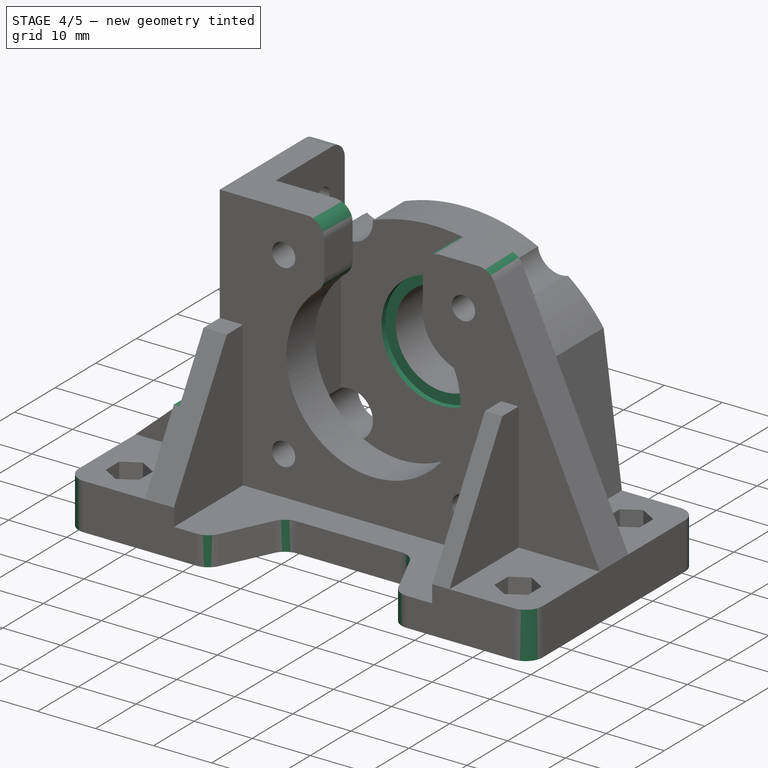
[diagram: stage 4 of 5 — iso view after this stage's code; geometry added in this stage tinted green]
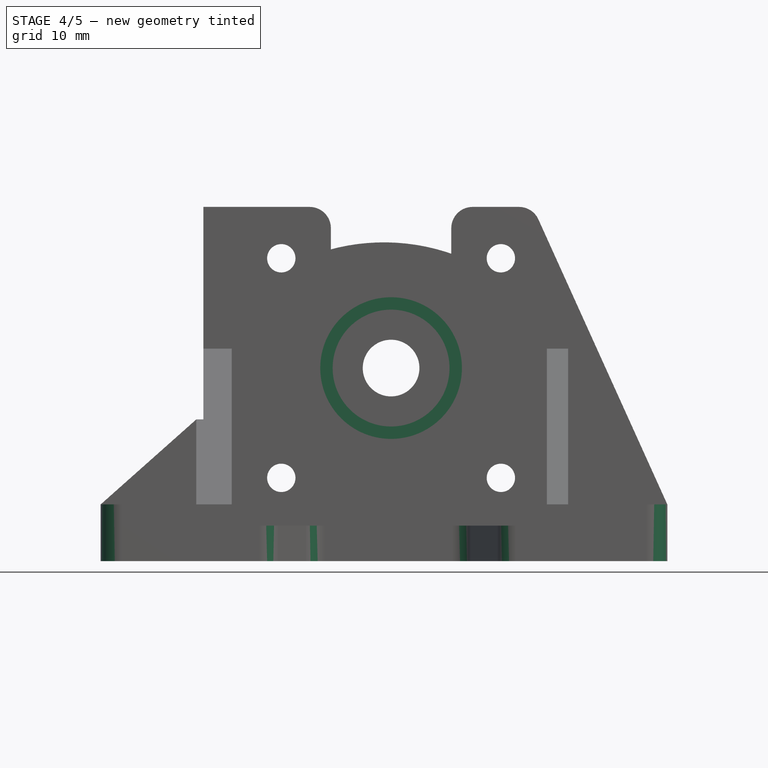
[diagram: stage 4 of 5 — front view after this stage's code; geometry added in this stage tinted green]
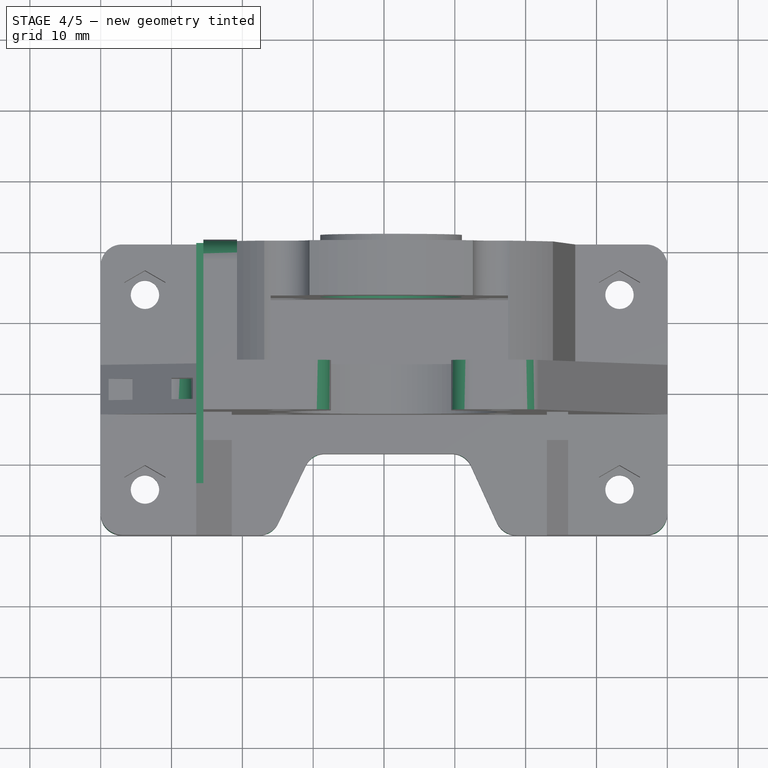
[diagram: stage 4 of 5 — top view after this stage's code; geometry added in this stage tinted green]
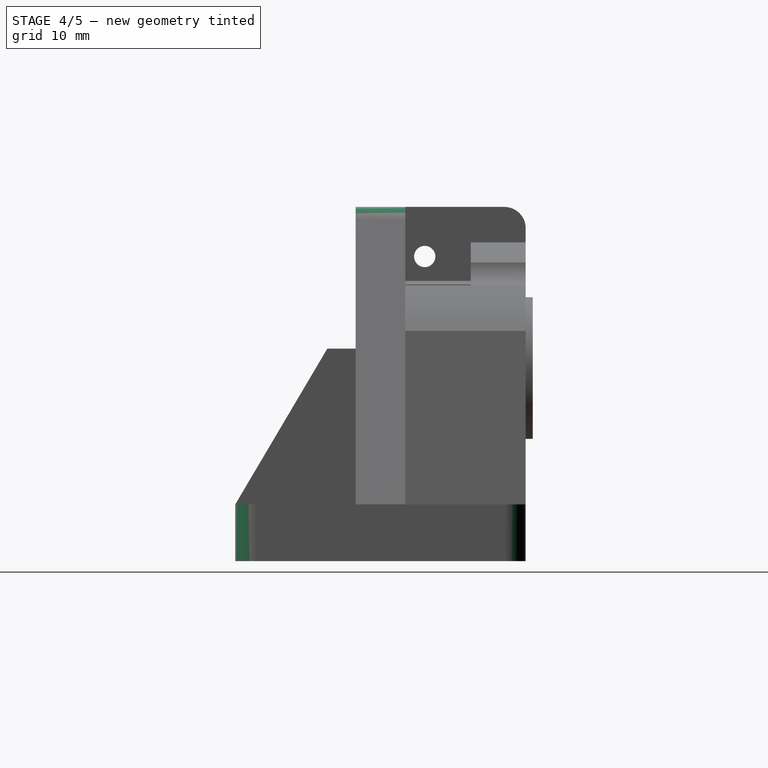
[diagram: stage 4 of 5 — right view after this stage's code; geometry added in this stage tinted green]
FEATURE [Sketcher::SketchObject] Sketch016
  MapMode = 5
  Placement = pos=(13.5,0,0) rot=(0.57735,-0.57735,-0.57735;2.0944rad)
  Support = -> [Pocket013]
  sketch-geometry (4):
    g0: LineSegment StartX=-7 StartY=50 StartZ=0 EndX=-41 EndY=50 EndZ=0
    g1: LineSegment StartX=-41 StartY=50 StartZ=0 EndX=-41 EndY=20 EndZ=0
    g2: LineSegment StartX=-41 StartY=20 StartZ=0 EndX=-7 EndY=20 EndZ=0
    g3: LineSegment StartX=-7 StartY=20 StartZ=0 EndX=-7 EndY=50 EndZ=0
  constraints (12):
    c: Coincident(g0,g1)
    c: Coincident(g1,g2)
    c: Coincident(g2,g3)
    c: Coincident(g3,g0)
    c: Horizontal(g0)
    c: Horizontal(g2)
    c: Vertical(g1)
    c: Vertical(g3)
    c: DistanceY(g2) = 20
    c: DistanceY(g3,g3) = 30
    c: DistanceX(g2) = -7
    c: DistanceX(g2,g2) = 34
FEATURE [PartDesign::Pocket] Pocket014
  BaseFeature = -> Pocket013
  Length = 1
  Length2 = 100
  Profile = -> Sketch016
  Type = 0
FEATURE [Sketcher::SketchObject] Sketch017
  MapMode = 5
  Placement = pos=(14.5,0,0) rot=(0.57735,-0.57735,-0.57735;2.0944rad)
  sketch-geometry (3):
    g0: Circle CenterX=-35.75 CenterY=42.9974 CenterZ=0 NormalX=0 NormalY=0 NormalZ=1 AngleXU=0 Radius=1.75
    g1: Circle CenterX=-26.75 CenterY=42.9974 CenterZ=0 NormalX=0 NormalY=0 NormalZ=1 AngleXU=0 Radius=1.75
    g2: LineSegment [constr] StartX=-35.75 StartY=42.9974 StartZ=0 EndX=-26.75 EndY=42.9974 EndZ=0
  constraints (8):
    c: Horizontal(g2)
    c: DistanceX(g2,g2) = 9
    c: DistanceX(g1) = -26.75
    c: DistanceY(g1) = 42.9974
    c: Coincident(g0,g2)
    c: Coincident(g1,g2)
    c: Radius(g1) = 1.75
    c: Equal(g0,g1)
FEATURE [Sketcher::SketchObject] Sketch018
  MapMode = 5
  Placement = pos=(14.5,0,0) rot=(0.57735,-0.57735,-0.57735;2.0944rad)
  sketch-geometry (2):
    g0: Circle CenterX=-26.75 CenterY=43 CenterZ=0 NormalX=0 NormalY=0 NormalZ=1 AngleXU=0 Radius=1.75
    g1: Circle CenterX=-35.75 CenterY=43 CenterZ=0 NormalX=0 NormalY=0 NormalZ=1 AngleXU=0 Radius=1.75
  constraints (6):
    c: Radius(g0) = 1.75
    c: Equal(g0,g1)
    c: DistanceX(g1) = -35.75
    c: DistanceY(g1) = 43
    c: DistanceX(g0) = -26.75
    c: DistanceY(g0) = 43
FEATURE [PartDesign::Pocket] Pocket015
  BaseFeature = -> Pocket014
  Length = 0.5
  Length2 = 100
  Profile = -> Sketch017
  Refine = true
  Type = 0
FEATURE [PartDesign::Pocket] Pocket017
  BaseFeature = -> Pocket015
  Length = 0.5
  Length2 = 100
  Profile = -> Sketch018
  Refine = true
  Type = 0
FEATURE [Sketcher::SketchObject] Sketch020
  ExternalGeometry = -> [Pocket017]
  MapMode = 5
  Placement = pos=(0,33.25,-8e-15) rot=(1,0,0;1.5708rad)
  Support = -> [Pocket017]
  sketch-geometry (1):
    g0: Circle CenterX=41 CenterY=27.25 CenterZ=0 NormalX=0 NormalY=0 NormalZ=1 AngleXU=0 Radius=10
  constraints (2):
    c: Radius(g0) = 10
    c: Coincident(g0,g-4)
FEATURE [PartDesign::Pocket] Pocket018
  BaseFeature = -> Pocket017
  Length = 1
  Length2 = 100
  Profile = -> Sketch020
  Refine = true
  Type = 0
FEATURE [PartDesign::Fillet] Fillet
  Base = -> Pocket018 [Edge119,Edge16,Edge47,Edge2,Edge204,Edge330,Edge252,Edge91,Edge11,Edge331,Edge345,Edge343,Edge164,Edge146,Edge169,Edge167]
  BaseFeature = -> Pocket018
  Radius = 3
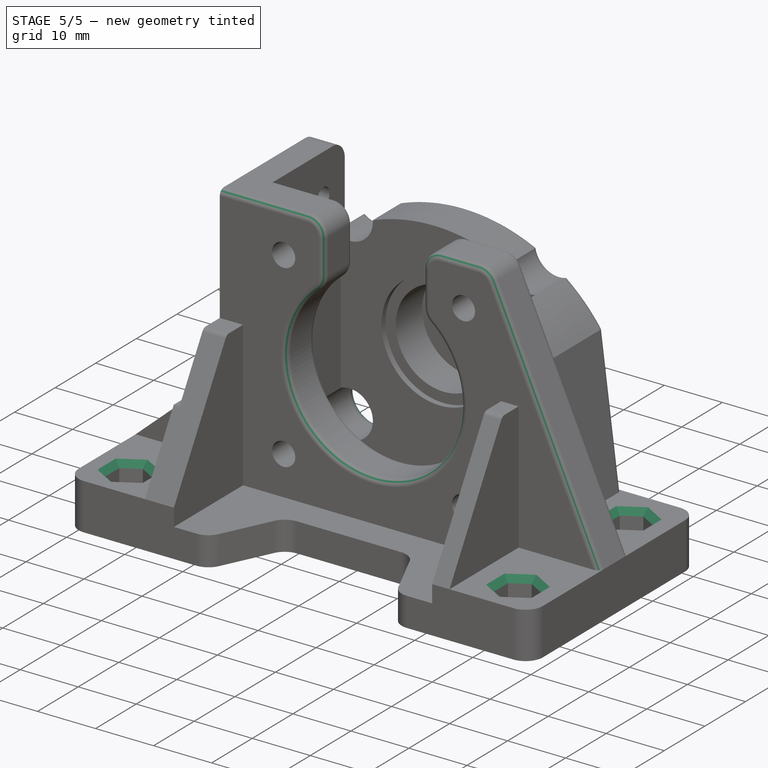
[diagram: stage 5 of 5 — iso view after this stage's code; geometry added in this stage tinted green]
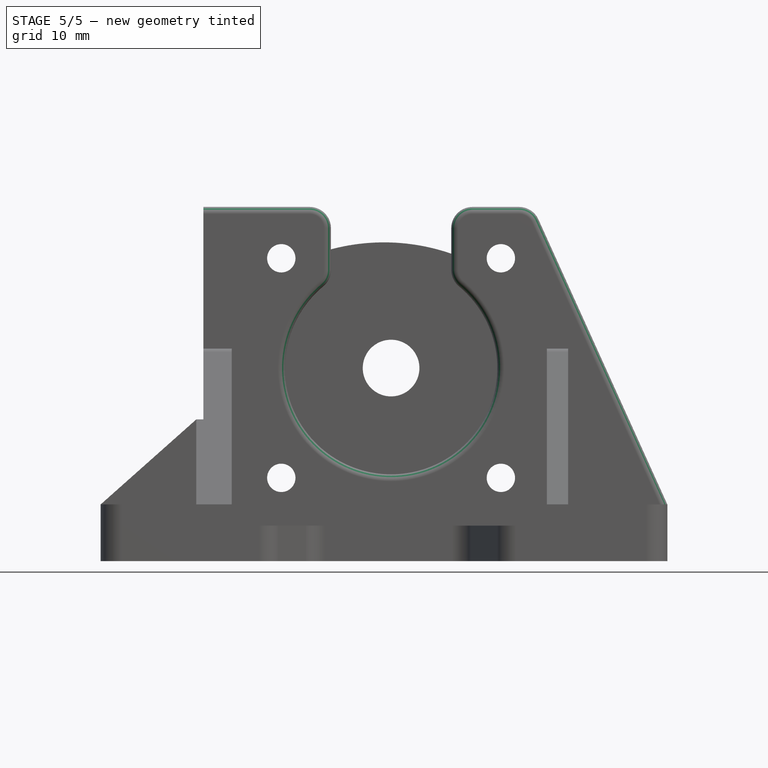
[diagram: stage 5 of 5 — front view after this stage's code; geometry added in this stage tinted green]
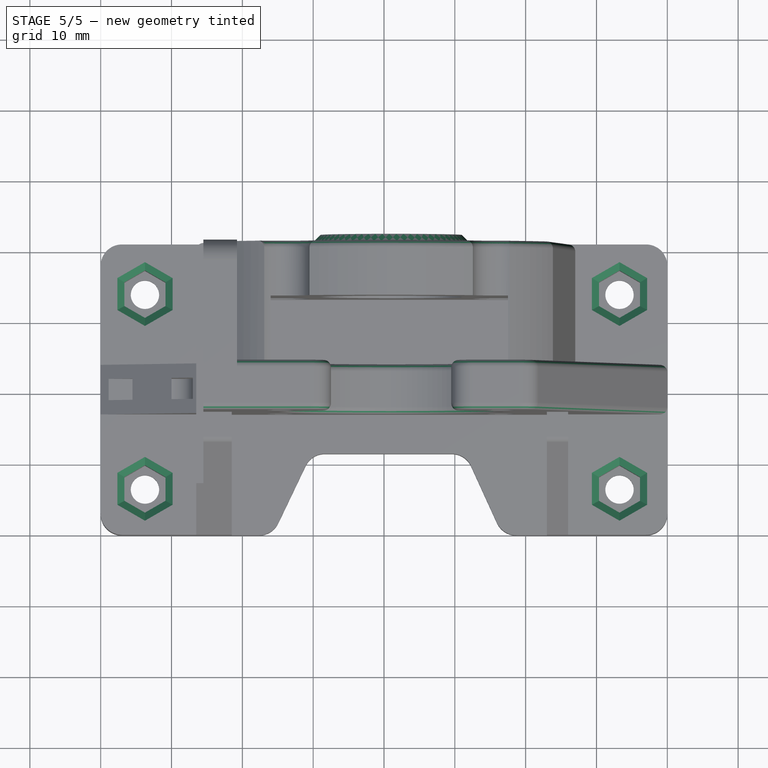
[diagram: stage 5 of 5 — top view after this stage's code; geometry added in this stage tinted green]
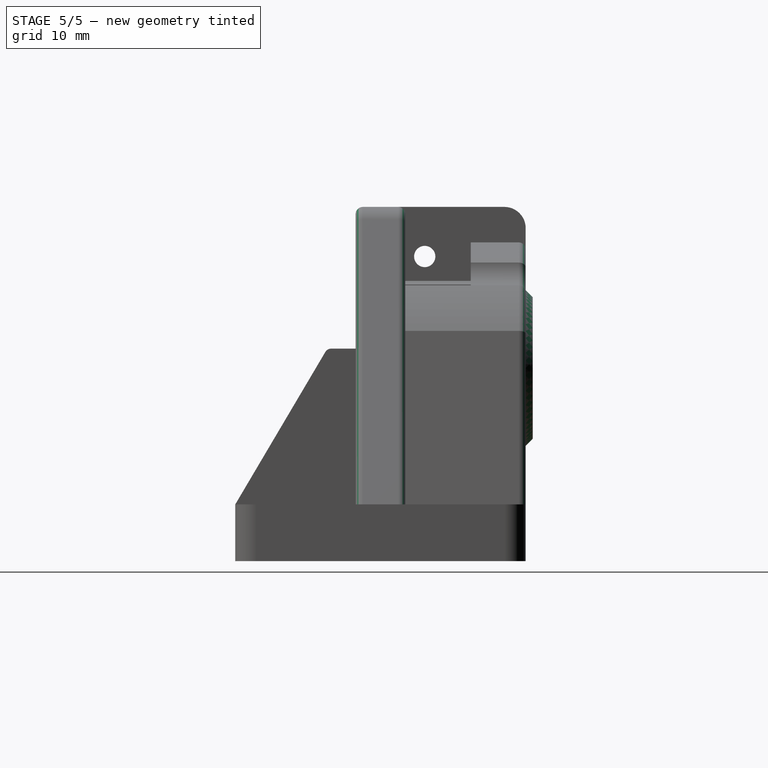
[diagram: stage 5 of 5 — right view after this stage's code; geometry added in this stage tinted green]
FEATURE [PartDesign::Fillet] Fillet001
  Base = -> Fillet [Edge15,Edge13,Edge11,Edge9,Edge7,Edge231,Edge291,Edge241,Edge273,Edge351,Edge272]
  BaseFeature = -> Fillet
  Radius = 1
FEATURE [PartDesign::Chamfer] Chamfer
  Base = -> Fillet001 [Edge19]
  BaseFeature = -> Fillet001
  Size = 0.99
FEATURE [PartDesign::Fillet] Fillet002
  Base = -> Chamfer [Edge19,Edge20]
  BaseFeature = -> Chamfer
  Radius = 2
FEATURE [PartDesign::Fillet] Fillet003
  Base = -> Fillet002 [Edge13]
  BaseFeature = -> Fillet002
  Radius = 1
FEATURE [PartDesign::Chamfer] Chamfer001
  Base = -> Fillet003 [Edge28,Edge27,Edge26,Edge31,Edge30,Edge29,Edge349,Edge354,Edge353,Edge352,Edge351,Edge350,Edge383,Edge382,Edge381,Edge386,Edge385,Edge384,Edge107,Edge108,Edge103,Edge104,Edge105,Edge106]
  BaseFeature = -> Fillet003
  Size = 1
FEATURE [PartDesign::Body] Body
  Group = -> [Sketch,Pad,Sketch001,Pocket,Sketch002,Pocket001,Sketch003,Pocket002,Sketch004,Pocket003,Sketch005,Pocket004,Sketch006,Pocket005,Sketch007,Sketch008,Sketch009,Sketch010,Pocket006,Pocket007,Pocket008,Pocket009,Sketch011,Pocket010,Sketch012,Pad001,Sketch013,Pocket011,Sketch014,Pocket012,Sketch015,Pocket013,Sketch016,Pocket014,Sketch017,Sketch018,Pocket015,Pocket017,Sketch020,Pocket018,Fillet,+5 more]
  Origin = -> Origin
  Tip = -> Chamfer001
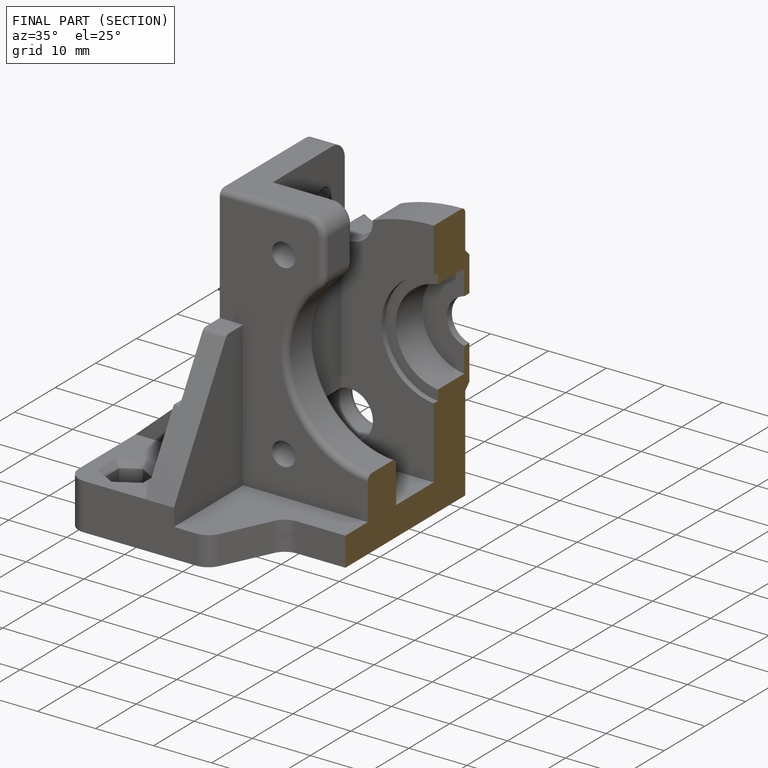
[diagram: finished part — half-section view (interior)]
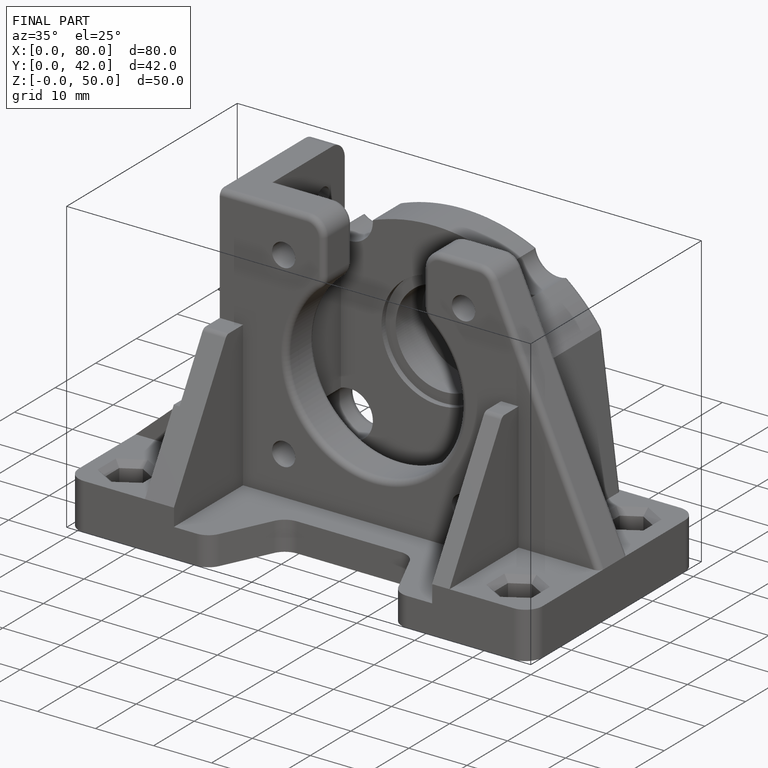
[diagram: finished part — iso view with bounding-box wireframe]
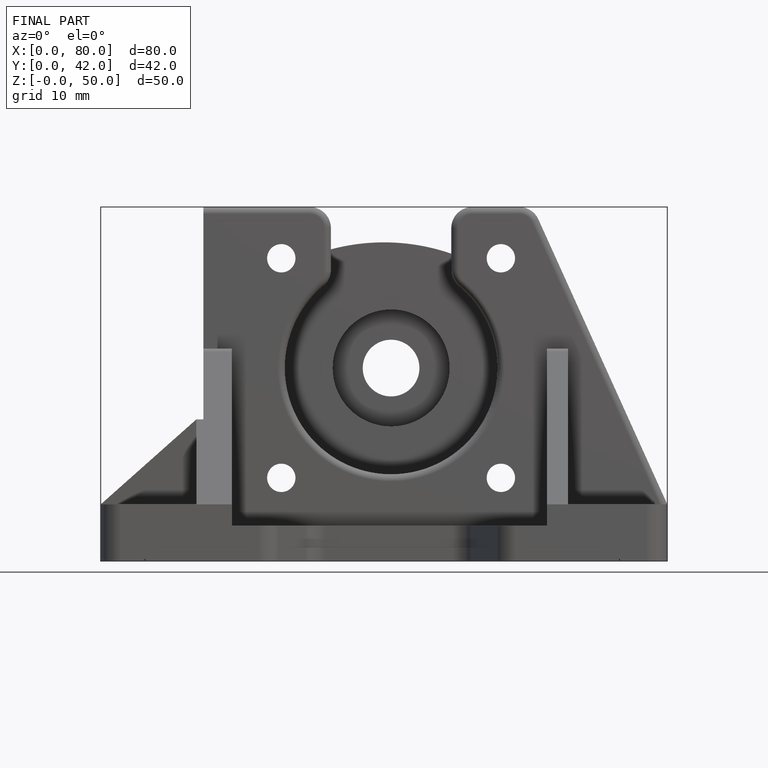
[diagram: finished part — front view with bounding-box wireframe]
